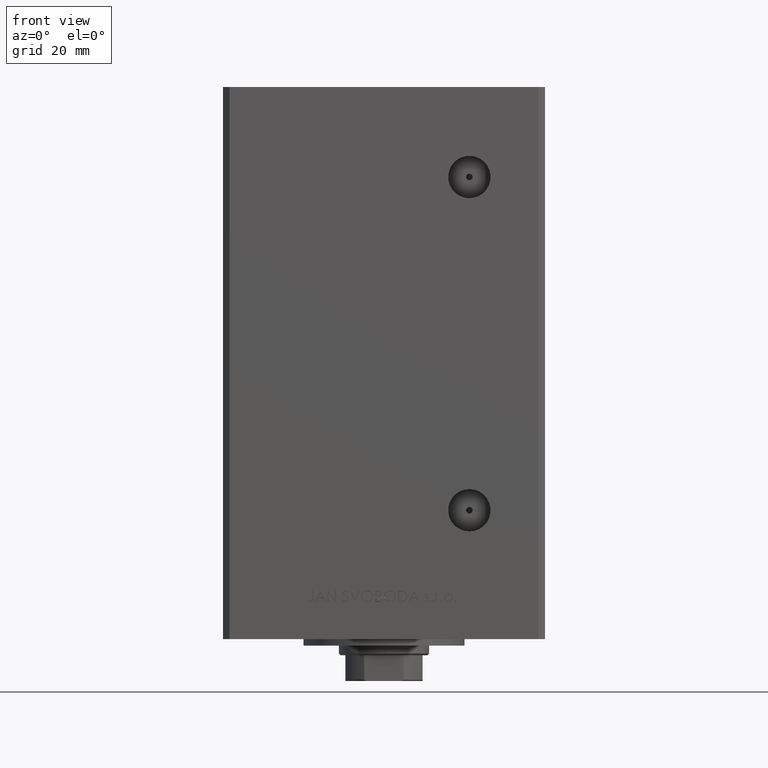
[diagram: clean part render]
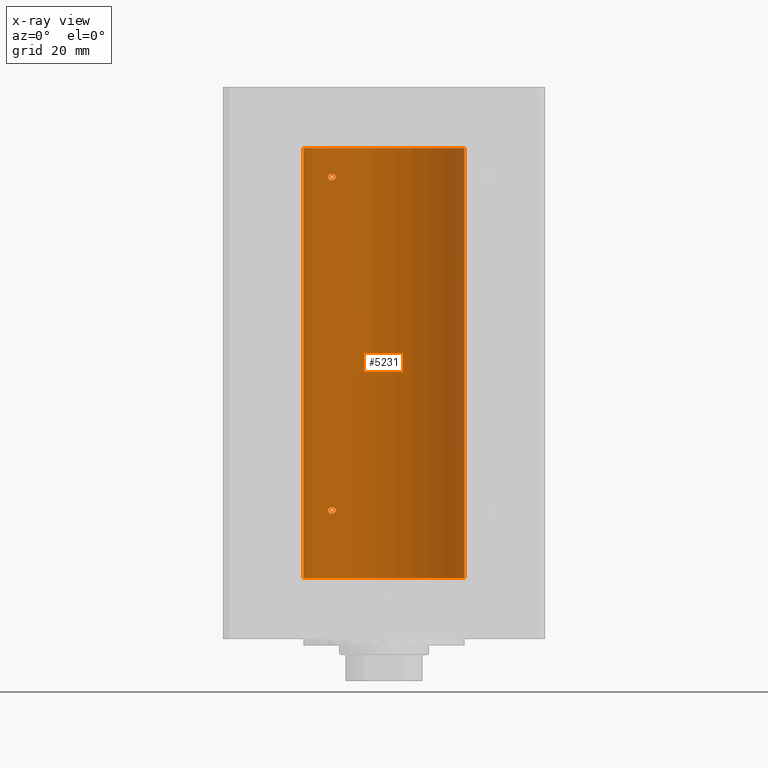
[diagram: x-ray — body ghosted, one internal face saturated and labeled with its STEP entity id]
A machine part, front view, then the same camera in x-ray: the body is ghosted and one INTERNAL B-rep face — a face not visible from any outside direction — is saturated and labeled: STEP entity #5231.
In plain terms, the highlighted cylindrical surface (partial cylindrical patch) has radius 25 mm, axis along (-0, -0, -1).
Its self-contained STEP definition (entity closure, byte-faithful):
#606 = CARTESIAN_POINT ( 'NONE',  ( -17.34935157289810093, 17.99999999999978328, 21.00000000000011724 ) ) ;
#777 = CARTESIAN_POINT ( 'NONE',  ( -15.95808436639362782, 19.24489366819297942, 20.02426087884955308 ) ) ;
#853 = EDGE_CURVE ( 'NONE', #1406, #5939, #26922, .T. ) ;
#1406 = VERTEX_POINT ( 'NONE', #3425 ) ;
#1883 = B_SPLINE_CURVE_WITH_KNOTS ( 'NONE', 3,
 ( #38497, #38744, #49927, #23504, #15357, #46869, #7758, #11309, #3953, #8002, #30898, #11805, #46372, #19168, #23256, #19419, #27581, #34957, #35456, #4445 ),
 .UNSPECIFIED., .F., .F.,
 ( 4, 2, 2, 2, 2, 2, 2, 2, 2, 4 ),
 ( 1.977584762613560088E-16, 0.0005040871078734879881, 0.001008174215746778218, 0.001512261323620068447, 0.002016348431493358677, 0.002520435539366648690, 0.003024522647239939136, 0.003528609755113229583, 0.003780653309049875673, 0.004032696862986522197 ),
 .UNSPECIFIED. ) ;
#2570 = EDGE_CURVE ( 'NONE', #37095, #11876, #1883, .T. ) ;
#2674 = CARTESIAN_POINT ( 'NONE',  ( -15.00000000000021316, 19.99999999999998934, 21.08403880362418548 ) ) ;
#2926 = CARTESIAN_POINT ( 'NONE',  ( -15.23594348686703448, 19.82115246225713179, 21.58872193268584638 ) ) ;
#3425 = CARTESIAN_POINT ( 'NONE',  ( -15.00000000000002842, 19.99999999999998224, 21.00000000000001776 ) ) ;
#3672 = CARTESIAN_POINT ( 'NONE',  ( -17.05007833789895955, 18.28384926940283606, 21.70137399901215858 ) ) ;
#3701 = FACE_BOUND ( 'NONE', #40969, .T. ) ;
#3953 = CARTESIAN_POINT ( 'NONE',  ( -16.34293146994553325, 18.91921593628410037, 123.4973425906727016 ) ) ;
#3966 = AXIS2_PLACEMENT_3D ( 'NONE', #4623, #7245, #20113 ) ;
#4164 = CARTESIAN_POINT ( 'NONE',  ( -15.95796937689564565, 19.24499537862563869, 21.97577309965221559 ) ) ;
#4337 = CARTESIAN_POINT ( 'NONE',  ( -16.34293146994555812, 18.91921593628406129, 19.99734259067264119 ) ) ;
#4445 = CARTESIAN_POINT ( 'NONE',  ( -15.00000000000001243, 19.99999999999999289, 124.5000000000000142 ) ) ;
#4623 = CARTESIAN_POINT ( 'NONE',  ( 0.000000000000000000, 0.000000000000000000, 133.5000000000000000 ) ) ;
#4933 = VERTEX_POINT ( 'NONE', #38057 ) ;
#5184 = CARTESIAN_POINT ( 'NONE',  ( 25.00000000000000000, 3.061616997868383043E-15, 133.5000000000000000 ) ) ;
#5231 = ADVANCED_FACE ( 'NONE', ( #26574, #42047, #3701 ), #34702, .F. ) ;
#5349 = CARTESIAN_POINT ( 'NONE',  ( -16.99843849356147985, 18.33190197607055794, 125.2468335145756839 ) ) ;
#5939 = VERTEX_POINT ( 'NONE', #34279 ) ;
#6099 = CARTESIAN_POINT ( 'NONE',  ( -16.72476285461317858, 18.58415905903082432, 125.4449447607956785 ) ) ;
#6353 = CARTESIAN_POINT ( 'NONE',  ( -15.23594348686701849, 19.82115246225714245, 125.0887219326858570 ) ) ;
#7245 = DIRECTION ( 'NONE',  ( -0.000000000000000000, -0.000000000000000000, -1.000000000000000000 ) ) ;
#7758 = CARTESIAN_POINT ( 'NONE',  ( -16.71492528194902505, 18.59135325782701642, 123.5801415583420635 ) ) ;
#8002 = CARTESIAN_POINT ( 'NONE',  ( -16.08757264251633146, 19.13682698743033939, 123.5034427658482770 ) ) ;
#8414 = CARTESIAN_POINT ( 'NONE',  ( -15.01476641895663988, 19.98894406010706248, 124.6687945634013914 ) ) ;
#8881 = CARTESIAN_POINT ( 'NONE',  ( -15.00000000000002842, 19.99999999999998224, 21.00000000000001776 ) ) ;
#9010 = ORIENTED_EDGE ( 'NONE', *, *, #2570, .F. ) ;
#9160 = CARTESIAN_POINT ( 'NONE',  ( -15.70535969280554767, 19.45169171760801774, 125.3989607721124884 ) ) ;
#9194 = VERTEX_POINT ( 'NONE', #17719 ) ;
#9903 = CARTESIAN_POINT ( 'NONE',  ( -17.34935157289744723, 18.00000000000002132, 124.6709736906063881 ) ) ;
#10176 = DIRECTION ( 'NONE',  ( -0.000000000000000000, 0.000000000000000000, 1.000000000000000000 ) ) ;
#10777 = CARTESIAN_POINT ( 'NONE',  ( -15.70535969280557254, 19.45169171760800708, 21.89896077211251679 ) ) ;
#11309 = CARTESIAN_POINT ( 'NONE',  ( -16.46844752485325714, 18.81003400474354947, 123.5115443190390181 ) ) ;
#11805 = CARTESIAN_POINT ( 'NONE',  ( -15.70664578139652257, 19.45064696206092236, 123.6005795994921499 ) ) ;
#11876 = VERTEX_POINT ( 'NONE', #48653 ) ;
#12431 = CARTESIAN_POINT ( 'NONE',  ( -17.34935157289749696, 17.99999999999998579, 20.82899836042583175 ) ) ;
#12500 = B_SPLINE_CURVE_WITH_KNOTS ( 'NONE', 3,
 ( #43448, #12431, #39880, #42944, #47504, #39138, #31784, #13179, #4337, #20316, #777, #47254, #43945, #35589, #39384, #16247, #20570, #43696, #20813, #8881 ),
 .UNSPECIFIED., .F., .F.,
 ( 4, 2, 2, 2, 2, 2, 2, 2, 2, 4 ),
 ( 2.011680962688586771E-16, 0.0005040871078734975291, 0.001008174215746794047, 0.001512261323620090565, 0.002016348431493386866, 0.002520435539366683384, 0.003024522647239979902, 0.003528609755113272951, 0.003780653309049920342, 0.004032696862986568168 ),
 .UNSPECIFIED. ) ;
#12856 = EDGE_CURVE ( 'NONE', #22407, #4933, #19487, .T. ) ;
#12886 = ORIENTED_EDGE ( 'NONE', *, *, #47122, .F. ) ;
#12948 = CARTESIAN_POINT ( 'NONE',  ( -17.19010376497220705, 18.15221652163112154, 125.0356701235680532 ) ) ;
#13179 = CARTESIAN_POINT ( 'NONE',  ( -16.46844752485328911, 18.81003400474351039, 20.01154431903895059 ) ) ;
#13960 = CARTESIAN_POINT ( 'NONE',  ( -17.14593038898729205, 18.19399314418736324, 125.0959448831965233 ) ) ;
#15357 = CARTESIAN_POINT ( 'NONE',  ( -17.05249165747618534, 18.28208333366439575, 123.7922192200364577 ) ) ;
#15646 = ORIENTED_EDGE ( 'NONE', *, *, #49276, .F. ) ;
#15832 = CARTESIAN_POINT ( 'NONE',  ( -17.30163983552693452, 18.04615713653364750, 21.33600747272780396 ) ) ;
#16247 = CARTESIAN_POINT ( 'NONE',  ( -15.10490010356607904, 19.92096840819818127, 20.60376667132253914 ) ) ;
#17005 = CARTESIAN_POINT ( 'NONE',  ( -16.46913072925704569, 18.81168496547890356, 125.5057775588114310 ) ) ;
#17069 = EDGE_CURVE ( 'NONE', #29900, #9194, #37503, .T. ) ;
#17719 = CARTESIAN_POINT ( 'NONE',  ( -25.00000000000000000, 0.000000000000000000, 133.5000000000000000 ) ) ;
#18143 = CARTESIAN_POINT ( 'NONE',  ( -15.01476641895664876, 19.98894406010705183, 21.16879456340136656 ) ) ;
#18734 = CARTESIAN_POINT ( 'NONE',  ( -17.34935157289804764, 17.99999999999982947, 124.5000000000001137 ) ) ;
#19168 = CARTESIAN_POINT ( 'NONE',  ( -15.34666241858318614, 19.73581294411416209, 123.8121224605376796 ) ) ;
#19419 = CARTESIAN_POINT ( 'NONE',  ( -15.10490010356605950, 19.92096840819819192, 124.1037666713225178 ) ) ;
#19487 = CIRCLE ( 'NONE', #49538, 25.00000000000000000 ) ;
#20113 = DIRECTION ( 'NONE',  ( -1.000000000000000000, 0.000000000000000000, 0.000000000000000000 ) ) ;
#20316 = CARTESIAN_POINT ( 'NONE',  ( -16.08757264251635277, 19.13682698743030386, 20.00344276584821657 ) ) ;
#20345 = CARTESIAN_POINT ( 'NONE',  ( -15.00000000000021139, 19.99999999999999645, 124.5840388036242103 ) ) ;
#20570 = CARTESIAN_POINT ( 'NONE',  ( -15.06722189748651175, 19.94943357555936458, 20.67598032487890336 ) ) ;
#20813 = CARTESIAN_POINT ( 'NONE',  ( -15.00000000000022027, 20.00000000000000355, 20.91594745860246007 ) ) ;
#21374 = CARTESIAN_POINT ( 'NONE',  ( 0.000000000000000000, 0.000000000000000000, 133.5000000000000000 ) ) ;
#21854 = CARTESIAN_POINT ( 'NONE',  ( -16.08745393861403628, 19.13692152169249638, 125.4965015099869277 ) ) ;
#21970 = CARTESIAN_POINT ( 'NONE',  ( -15.00000000000002842, 19.99999999999998224, 21.00000000000001776 ) ) ;
#22223 = CARTESIAN_POINT ( 'NONE',  ( -15.06763582406801483, 19.94912143246361325, 21.32506993877176882 ) ) ;
#22407 = VERTEX_POINT ( 'NONE', #45554 ) ;
#23256 = CARTESIAN_POINT ( 'NONE',  ( -15.23538646979298683, 19.82157806413532697, 123.9119998952828325 ) ) ;
#23504 = CARTESIAN_POINT ( 'NONE',  ( -17.15234217094405622, 18.18812579706697363, 123.8965730437749784 ) ) ;
#23924 = CARTESIAN_POINT ( 'NONE',  ( -15.06763582406800595, 19.94912143246363456, 124.8250699387717617 ) ) ;
#24865 = VECTOR ( 'NONE', #47358, 1000.000000000000000 ) ;
#25423 = CARTESIAN_POINT ( 'NONE',  ( -17.34935157289804764, 17.99999999999982947, 124.5000000000001137 ) ) ;
#26417 = VECTOR ( 'NONE', #47858, 1000.000000000000000 ) ;
#26544 = ORIENTED_EDGE ( 'NONE', *, *, #32176, .F. ) ;
#26574 = FACE_OUTER_BOUND ( 'NONE', #36991, .T. ) ;
#26922 = B_SPLINE_CURVE_WITH_KNOTS ( 'NONE', 3,
 ( #21970, #2674, #18143, #22223, #37723, #2926, #33935, #45597, #10777, #4164, #46088, #27545, #31115, #27802, #3672, #30866, #35173, #15832, #34919, #606 ),
 .UNSPECIFIED., .F., .F.,
 ( 4, 2, 2, 2, 2, 2, 2, 2, 2, 4 ),
 ( 0.004032696862986568168, 0.004284699222246932983, 0.004536701581507298665, 0.005040706300028030031, 0.005544711018548761396, 0.006048715737069493628, 0.007056725174110963297, 0.007308727533371326378, 0.007560729892631690326, 0.008064734611152429497 ),
 .UNSPECIFIED. ) ;
#27545 = CARTESIAN_POINT ( 'NONE',  ( -16.46913072925707056, 18.81168496547888580, 22.00577755881143815 ) ) ;
#27581 = CARTESIAN_POINT ( 'NONE',  ( -15.06722189748649399, 19.94943357555937524, 124.1759803248789069 ) ) ;
#27802 = CARTESIAN_POINT ( 'NONE',  ( -16.99843849356152248, 18.33190197607051886, 21.74683351457567682 ) ) ;
#27803 = AXIS2_PLACEMENT_3D ( 'NONE', #21374, #32589, #36892 ) ;
#28329 = LINE ( 'NONE', #5184, #24865 ) ;
#28988 = CARTESIAN_POINT ( 'NONE',  ( -15.95796937689562434, 19.24499537862566356, 125.4757730996521587 ) ) ;
#29605 = ORIENTED_EDGE ( 'NONE', *, *, #853, .F. ) ;
#29900 = VERTEX_POINT ( 'NONE', #34238 ) ;
#30488 = ORIENTED_EDGE ( 'NONE', *, *, #40429, .T. ) ;
#30605 = B_SPLINE_CURVE_WITH_KNOTS ( 'NONE', 3,
 ( #43215, #20345, #8414, #23924, #39408, #6353, #43970, #44219, #9160, #28988, #21854, #17005, #6099, #5349, #44719, #13960, #12948, #36362, #9903, #25423 ),
 .UNSPECIFIED., .F., .F.,
 ( 4, 2, 2, 2, 2, 2, 2, 2, 2, 4 ),
 ( 0.004032696862986522197, 0.004284699222246900890, 0.004536701581507280451, 0.005040706300027999673, 0.005544711018548718895, 0.006048715737069438117, 0.007056725174110876561, 0.007308727533371228366, 0.007560729892631580171, 0.008064734611152316740 ),
 .UNSPECIFIED. ) ;
#30866 = CARTESIAN_POINT ( 'NONE',  ( -17.14593038898733113, 18.19399314418732061, 21.59594488319653038 ) ) ;
#30898 = CARTESIAN_POINT ( 'NONE',  ( -15.95808436639360650, 19.24489366819300429, 123.5242608788496028 ) ) ;
#31115 = CARTESIAN_POINT ( 'NONE',  ( -16.72476285461321766, 18.58415905903079945, 21.94494476079571754 ) ) ;
#31784 = CARTESIAN_POINT ( 'NONE',  ( -16.71492528194906768, 18.59135325782697734, 20.08014155834207060 ) ) ;
#32176 = EDGE_CURVE ( 'NONE', #5939, #1406, #12500, .T. ) ;
#32391 = CARTESIAN_POINT ( 'NONE',  ( -25.00000000000000000, 0.000000000000000000, 133.5000000000000000 ) ) ;
#32589 = DIRECTION ( 'NONE',  ( -0.000000000000000000, 0.000000000000000000, 1.000000000000000000 ) ) ;
#33588 = CARTESIAN_POINT ( 'NONE',  ( 0.000000000000000000, 0.000000000000000000, 0.000000000000000000 ) ) ;
#33935 = CARTESIAN_POINT ( 'NONE',  ( -15.34624284195510135, 19.73614442075936992, 21.68761853185132793 ) ) ;
#34238 = CARTESIAN_POINT ( 'NONE',  ( 25.00000000000000000, 3.061616997868383043E-15, 133.5000000000000000 ) ) ;
#34279 = CARTESIAN_POINT ( 'NONE',  ( -17.34935157289810093, 17.99999999999978328, 21.00000000000011724 ) ) ;
#34702 = CYLINDRICAL_SURFACE ( 'NONE', #3966, 25.00000000000000000 ) ;
#34919 = CARTESIAN_POINT ( 'NONE',  ( -17.34935157289749696, 17.99999999999998224, 21.17097369060635259 ) ) ;
#34946 = ORIENTED_EDGE ( 'NONE', *, *, #17069, .T. ) ;
#34957 = CARTESIAN_POINT ( 'NONE',  ( -15.01482636753734923, 19.98889854010115030, 124.3312026610077652 ) ) ;
#35173 = CARTESIAN_POINT ( 'NONE',  ( -17.19010376497224968, 18.15221652163108601, 21.53567012356803545 ) ) ;
#35456 = CARTESIAN_POINT ( 'NONE',  ( -15.00000000000020606, 20.00000000000001066, 124.4159474586024601 ) ) ;
#35589 = CARTESIAN_POINT ( 'NONE',  ( -15.34666241858321634, 19.73581294411414078, 20.31212246053764048 ) ) ;
#36362 = CARTESIAN_POINT ( 'NONE',  ( -17.30163983552688478, 18.04615713653369014, 124.8360074727278004 ) ) ;
#36892 = DIRECTION ( 'NONE',  ( 1.000000000000000000, 0.000000000000000000, 0.000000000000000000 ) ) ;
#36991 = EDGE_LOOP ( 'NONE', ( #12886, #34946, #30488, #40803 ) ) ;
#37095 = VERTEX_POINT ( 'NONE', #18734 ) ;
#37503 = CIRCLE ( 'NONE', #27803, 25.00000000000000000 ) ;
#37723 = CARTESIAN_POINT ( 'NONE',  ( -15.10490800566739011, 19.92096305044238491, 21.39629317404428122 ) ) ;
#38057 = CARTESIAN_POINT ( 'NONE',  ( -25.00000000000000000, 0.000000000000000000, 0.000000000000000000 ) ) ;
#38089 = EDGE_LOOP ( 'NONE', ( #26544, #29605 ) ) ;
#38497 = CARTESIAN_POINT ( 'NONE',  ( -17.34935157289804764, 17.99999999999982947, 124.5000000000001137 ) ) ;
#38744 = CARTESIAN_POINT ( 'NONE',  ( -17.34935157289744723, 18.00000000000002842, 124.3289983604258140 ) ) ;
#39138 = CARTESIAN_POINT ( 'NONE',  ( -16.83415218046515349, 18.48332662461723785, 20.13431726628117602 ) ) ;
#39384 = CARTESIAN_POINT ( 'NONE',  ( -15.23538646979301170, 19.82157806413531631, 20.41199989528278991 ) ) ;
#39408 = CARTESIAN_POINT ( 'NONE',  ( -15.10490800566737590, 19.92096305044239202, 124.8962931740442883 ) ) ;
#39880 = CARTESIAN_POINT ( 'NONE',  ( -17.30269557861145202, 18.04515136187498570, 20.66604208175575863 ) ) ;
#40429 = EDGE_CURVE ( 'NONE', #9194, #4933, #44062, .T. ) ;
#40803 = ORIENTED_EDGE ( 'NONE', *, *, #12856, .F. ) ;
#40969 = EDGE_LOOP ( 'NONE', ( #9010, #15646 ) ) ;
#41163 = DIRECTION ( 'NONE',  ( 1.000000000000000000, 0.000000000000000000, 0.000000000000000000 ) ) ;
#42047 = FACE_BOUND ( 'NONE', #38089, .T. ) ;
#42944 = CARTESIAN_POINT ( 'NONE',  ( -17.15234217094410596, 18.18812579706693100, 20.39657304377498193 ) ) ;
#43215 = CARTESIAN_POINT ( 'NONE',  ( -15.00000000000001243, 19.99999999999999289, 124.5000000000000142 ) ) ;
#43448 = CARTESIAN_POINT ( 'NONE',  ( -17.34935157289810093, 17.99999999999978328, 21.00000000000011724 ) ) ;
#43696 = CARTESIAN_POINT ( 'NONE',  ( -15.01482636753736166, 19.98889854010113254, 20.83120266100772611 ) ) ;
#43945 = CARTESIAN_POINT ( 'NONE',  ( -15.58164749401203686, 19.55082150006403907, 20.15667807268521727 ) ) ;
#43970 = CARTESIAN_POINT ( 'NONE',  ( -15.34624284195508359, 19.73614442075938413, 125.1876185318513137 ) ) ;
#44062 = LINE ( 'NONE', #32391, #26417 ) ;
#44219 = CARTESIAN_POINT ( 'NONE',  ( -15.58230678163761596, 19.55030131031897511, 125.3437394867029582 ) ) ;
#44719 = CARTESIAN_POINT ( 'NONE',  ( -17.05007833789892402, 18.28384926940288224, 125.2013739990121621 ) ) ;
#45554 = CARTESIAN_POINT ( 'NONE',  ( 25.00000000000000000, 3.061616997868383043E-15, 0.000000000000000000 ) ) ;
#45597 = CARTESIAN_POINT ( 'NONE',  ( -15.58230678163764260, 19.55030131031895380, 21.84373948670296173 ) ) ;
#46088 = CARTESIAN_POINT ( 'NONE',  ( -16.08745393861406825, 19.13692152169247507, 21.99650150998695608 ) ) ;
#46372 = CARTESIAN_POINT ( 'NONE',  ( -15.58164749401200488, 19.55082150006405328, 123.6566780726852386 ) ) ;
#46869 = CARTESIAN_POINT ( 'NONE',  ( -16.83415218046511086, 18.48332662461727693, 123.6343172662811725 ) ) ;
#47122 = EDGE_CURVE ( 'NONE', #29900, #22407, #28329, .T. ) ;
#47254 = CARTESIAN_POINT ( 'NONE',  ( -15.70664578139654566, 19.45064696206090105, 20.10057959949213213 ) ) ;
#47358 = DIRECTION ( 'NONE',  ( -0.000000000000000000, -0.000000000000000000, -1.000000000000000000 ) ) ;
#47504 = CARTESIAN_POINT ( 'NONE',  ( -17.05249165747622442, 18.28208333366434601, 20.29221922003643996 ) ) ;
#47858 = DIRECTION ( 'NONE',  ( -0.000000000000000000, -0.000000000000000000, -1.000000000000000000 ) ) ;
#48653 = CARTESIAN_POINT ( 'NONE',  ( -15.00000000000001243, 19.99999999999999289, 124.5000000000000142 ) ) ;
#49276 = EDGE_CURVE ( 'NONE', #11876, #37095, #30605, .T. ) ;
#49538 = AXIS2_PLACEMENT_3D ( 'NONE', #33588, #10176, #41163 ) ;
#49927 = CARTESIAN_POINT ( 'NONE',  ( -17.30269557861140584, 18.04515136187503188, 124.1660420817558048 ) ) ;